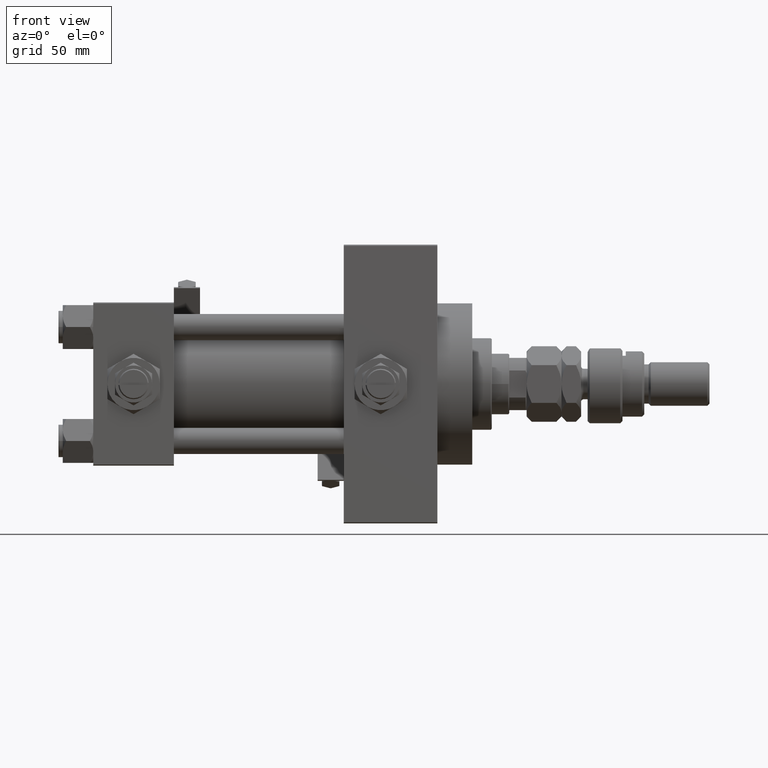
[diagram: clean part render]
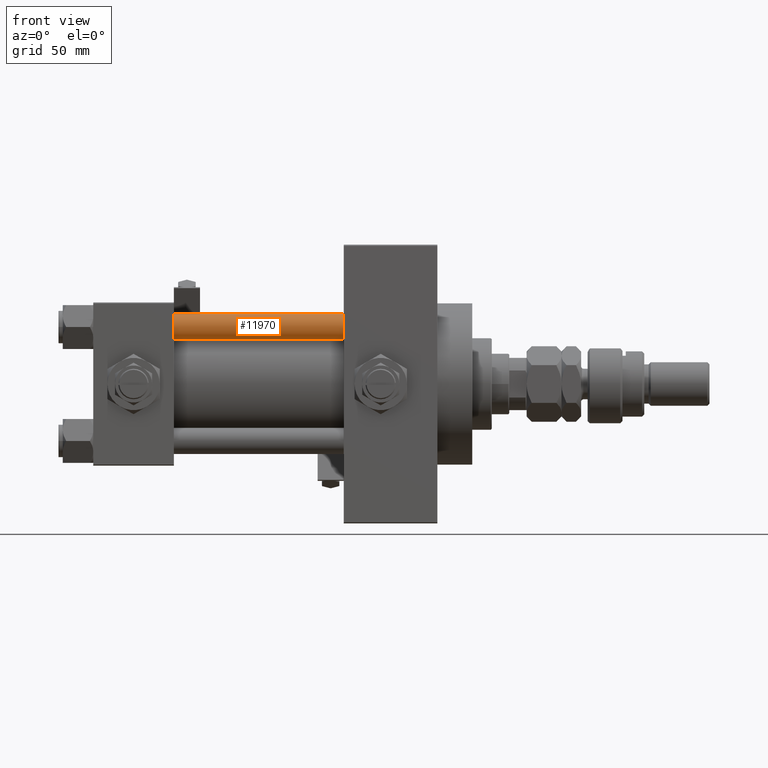
[diagram: same view with one face highlighted and labeled with its STEP entity id]
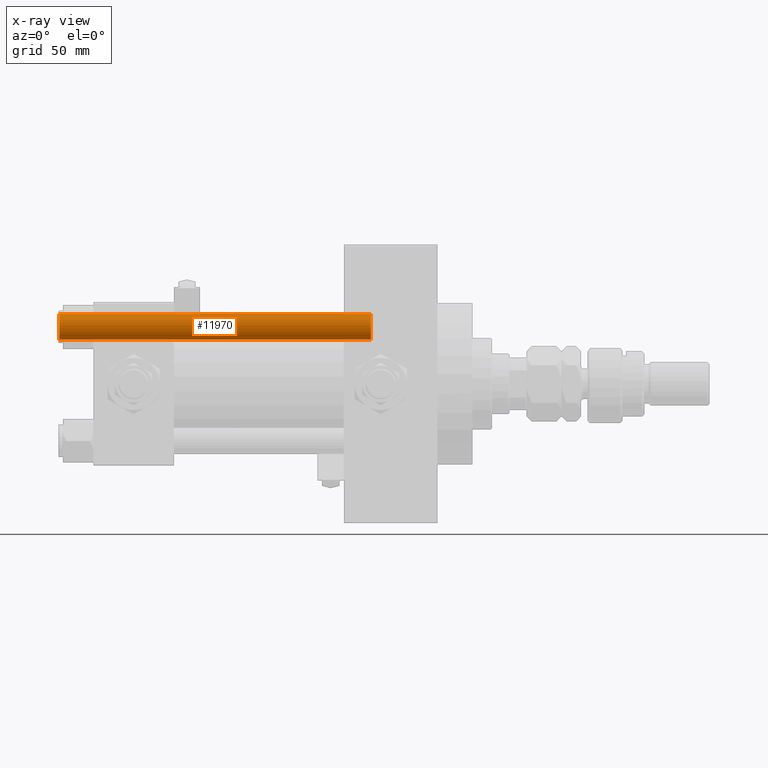
[diagram: x-ray of the same camera — body ghosted, the highlighted face saturated]
A machine part, front view. The second image highlights one B-rep face of the part: STEP entity #11970.
The next image is the same camera in x-ray: the body ghosted, the highlighted face saturated — about 0% of this face is hidden behind the body in this view.
In plain terms, the highlighted cylindrical surface (edge-blend (fillet) strip) has radius 6 mm, axis along (1, 0, 0).
Its self-contained STEP definition (entity closure, byte-faithful):
#5 = EDGE_CURVE ( 'NONE', #26941, #45117, #52501, .T. ) ;
#762 = DIRECTION ( 'NONE',  ( -0.000000000000000000, -0.000000000000000000, -1.000000000000000000 ) ) ;
#849 = CARTESIAN_POINT ( 'NONE',  ( -6.000000000000000888, 0.000000000000000000, 144.0000000000000000 ) ) ;
#2407 = DIRECTION ( 'NONE',  ( 1.000000000000000000, 0.000000000000000000, 0.000000000000000000 ) ) ;
#6021 = DIRECTION ( 'NONE',  ( 1.000000000000000000, 0.000000000000000000, 0.000000000000000000 ) ) ;
#6228 = ORIENTED_EDGE ( 'NONE', *, *, #41102, .T. ) ;
#6470 = EDGE_LOOP ( 'NONE', ( #6228, #30106, #6989, #42147 ) ) ;
#6989 = ORIENTED_EDGE ( 'NONE', *, *, #39304, .T. ) ;
#7321 = VECTOR ( 'NONE', #7636, 1000.000000000000000 ) ;
#7636 = DIRECTION ( 'NONE',  ( -0.000000000000000000, -0.000000000000000000, -1.000000000000000000 ) ) ;
#8571 = CYLINDRICAL_SURFACE ( 'NONE', #22584, 6.000000000000000888 ) ;
#9016 = CIRCLE ( 'NONE', #46796, 6.000000000000000888 ) ;
#9203 = VERTEX_POINT ( 'NONE', #47924 ) ;
#9633 = CARTESIAN_POINT ( 'NONE',  ( 0.000000000000000000, 0.000000000000000000, 144.0000000000000000 ) ) ;
#11970 = ADVANCED_FACE ( 'NONE', ( #26052 ), #8571, .T. ) ;
#13592 = DIRECTION ( 'NONE',  ( -0.000000000000000000, -0.000000000000000000, 1.000000000000000000 ) ) ;
#16536 = CARTESIAN_POINT ( 'NONE',  ( 6.000000000000000888, 7.347880794884120722E-16, 144.0000000000000000 ) ) ;
#19359 = CARTESIAN_POINT ( 'NONE',  ( 0.000000000000000000, 0.000000000000000000, 143.5000000000000000 ) ) ;
#20244 = CIRCLE ( 'NONE', #50293, 6.000000000000000888 ) ;
#20305 = LINE ( 'NONE', #16536, #7321 ) ;
#20430 = EDGE_CURVE ( 'NONE', #9203, #45404, #20305, .T. ) ;
#22584 = AXIS2_PLACEMENT_3D ( 'NONE', #9633, #762, #46489 ) ;
#22924 = CARTESIAN_POINT ( 'NONE',  ( -6.000000000000000888, 0.000000000000000000, 0.5000000000000004441 ) ) ;
#26052 = FACE_OUTER_BOUND ( 'NONE', #6470, .T. ) ;
#26941 = VERTEX_POINT ( 'NONE', #33942 ) ;
#30106 = ORIENTED_EDGE ( 'NONE', *, *, #20430, .T. ) ;
#33942 = CARTESIAN_POINT ( 'NONE',  ( -6.000000000000000888, 0.000000000000000000, 143.5000000000000000 ) ) ;
#39261 = CARTESIAN_POINT ( 'NONE',  ( 6.000000000000000888, 7.347880794884120722E-16, 0.5000000000000004441 ) ) ;
#39304 = EDGE_CURVE ( 'NONE', #45404, #45117, #9016, .T. ) ;
#41102 = EDGE_CURVE ( 'NONE', #26941, #9203, #20244, .T. ) ;
#42147 = ORIENTED_EDGE ( 'NONE', *, *, #5, .F. ) ;
#42859 = CARTESIAN_POINT ( 'NONE',  ( 0.000000000000000000, 0.000000000000000000, 0.5000000000000004441 ) ) ;
#45117 = VERTEX_POINT ( 'NONE', #22924 ) ;
#45404 = VERTEX_POINT ( 'NONE', #39261 ) ;
#45435 = VECTOR ( 'NONE', #49293, 1000.000000000000000 ) ;
#46489 = DIRECTION ( 'NONE',  ( -1.000000000000000000, 0.000000000000000000, 0.000000000000000000 ) ) ;
#46796 = AXIS2_PLACEMENT_3D ( 'NONE', #42859, #13592, #6021 ) ;
#47924 = CARTESIAN_POINT ( 'NONE',  ( 6.000000000000000888, 7.347880794884120722E-16, 143.5000000000000000 ) ) ;
#49293 = DIRECTION ( 'NONE',  ( -0.000000000000000000, -0.000000000000000000, -1.000000000000000000 ) ) ;
#50293 = AXIS2_PLACEMENT_3D ( 'NONE', #19359, #52413, #2407 ) ;
#52413 = DIRECTION ( 'NONE',  ( 0.000000000000000000, 0.000000000000000000, -1.000000000000000000 ) ) ;
#52501 = LINE ( 'NONE', #849, #45435 ) ;